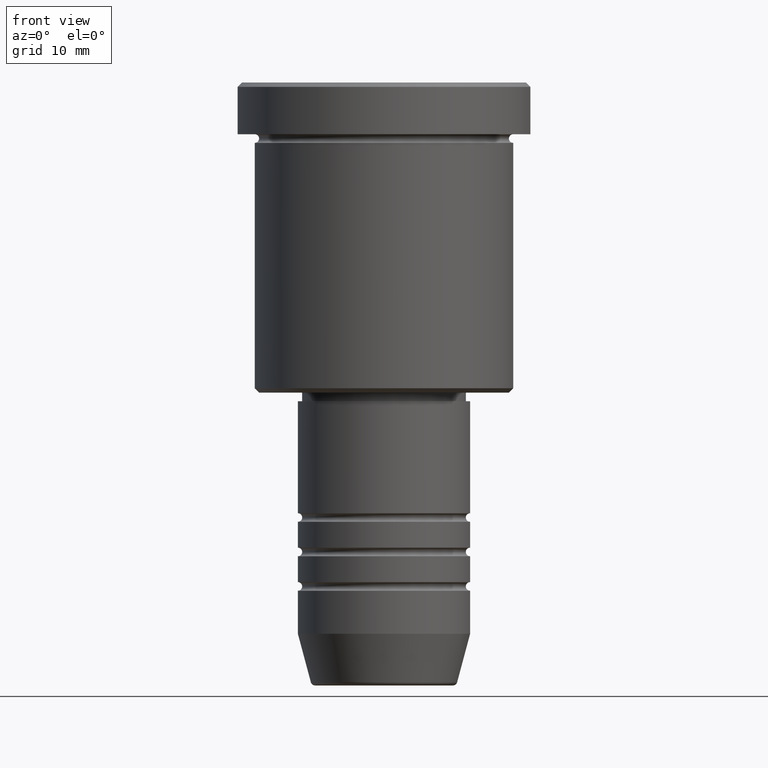
[diagram: clean part render]
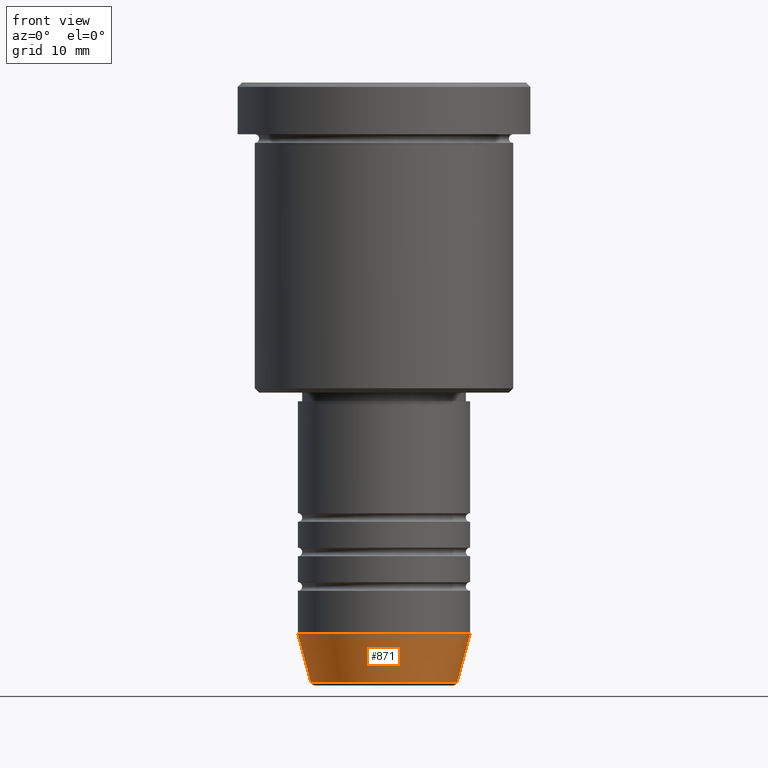
[diagram: same view with one face highlighted and labeled with its STEP entity id]
A machine part, front view. The second image highlights one B-rep face of the part: STEP entity #871.
In plain terms, the highlighted conical surface has half-angle 15 deg.
Its self-contained STEP definition (entity closure, byte-faithful):
#58 = LINE ( 'NONE', #1068, #905 ) ;
#87 = VERTEX_POINT ( 'NONE', #552 ) ;
#105 = DIRECTION ( 'NONE',  ( -0.000000000000000000, -0.000000000000000000, 1.000000000000000000 ) ) ;
#117 = VERTEX_POINT ( 'NONE', #357 ) ;
#182 = EDGE_CURVE ( 'NONE', #675, #753, #574, .T. ) ;
#191 = ORIENTED_EDGE ( 'NONE', *, *, #519, .T. ) ;
#205 = EDGE_LOOP ( 'NONE', ( #1065, #346, #191, #881 ) ) ;
#242 = AXIS2_PLACEMENT_3D ( 'NONE', #300, #105, #939 ) ;
#300 = CARTESIAN_POINT ( 'NONE',  ( 0.000000000000000000, 0.000000000000000000, -69.62940952255127058 ) ) ;
#346 = ORIENTED_EDGE ( 'NONE', *, *, #182, .T. ) ;
#357 = CARTESIAN_POINT ( 'NONE',  ( -10.00000000000000178, 1.224646799147353454E-15, -64.00000000000000000 ) ) ;
#431 = DIRECTION ( 'NONE',  ( 1.000000000000000000, 0.000000000000000000, 0.000000000000000000 ) ) ;
#453 = CONICAL_SURFACE ( 'NONE', #1179, 10.00000000000000178, 0.2617993877991501295 ) ;
#479 = VECTOR ( 'NONE', #932, 1000.000000000000000 ) ;
#519 = EDGE_CURVE ( 'NONE', #753, #87, #1121, .T. ) ;
#552 = CARTESIAN_POINT ( 'NONE',  ( 10.00000000000000178, 0.000000000000000000, -64.00000000000000000 ) ) ;
#574 = CIRCLE ( 'NONE', #242, 8.491604264568312743 ) ;
#649 = CARTESIAN_POINT ( 'NONE',  ( 8.491604264568312743, 0.000000000000000000, -69.62940952255127058 ) ) ;
#663 = EDGE_CURVE ( 'NONE', #675, #117, #58, .T. ) ;
#675 = VERTEX_POINT ( 'NONE', #1059 ) ;
#679 = CARTESIAN_POINT ( 'NONE',  ( 0.000000000000000000, 0.000000000000000000, -64.00000000000000000 ) ) ;
#705 = EDGE_CURVE ( 'NONE', #117, #87, #919, .T. ) ;
#749 = DIRECTION ( 'NONE',  ( 1.000000000000000000, 0.000000000000000000, 0.000000000000000000 ) ) ;
#753 = VERTEX_POINT ( 'NONE', #649 ) ;
#757 = FACE_OUTER_BOUND ( 'NONE', #205, .T. ) ;
#791 = AXIS2_PLACEMENT_3D ( 'NONE', #1169, #799, #431 ) ;
#799 = DIRECTION ( 'NONE',  ( -0.000000000000000000, -0.000000000000000000, 1.000000000000000000 ) ) ;
#807 = DIRECTION ( 'NONE',  ( -0.2588190451025214056, 3.169619151431772953E-17, 0.9659258262890680902 ) ) ;
#858 = DIRECTION ( 'NONE',  ( -0.000000000000000000, -0.000000000000000000, 1.000000000000000000 ) ) ;
#871 = ADVANCED_FACE ( 'NONE', ( #757 ), #453, .T. ) ;
#881 = ORIENTED_EDGE ( 'NONE', *, *, #705, .F. ) ;
#905 = VECTOR ( 'NONE', #807, 1000.000000000000000 ) ;
#919 = CIRCLE ( 'NONE', #791, 10.00000000000000178 ) ;
#932 = DIRECTION ( 'NONE',  ( 0.2588190451025214056, 0.000000000000000000, 0.9659258262890680902 ) ) ;
#939 = DIRECTION ( 'NONE',  ( 1.000000000000000000, 0.000000000000000000, 0.000000000000000000 ) ) ;
#949 = CARTESIAN_POINT ( 'NONE',  ( 10.00000000000000178, 0.000000000000000000, -64.00000000000000000 ) ) ;
#1059 = CARTESIAN_POINT ( 'NONE',  ( -8.491604264568312743, 1.132284198685156781E-15, -69.62940952255127058 ) ) ;
#1065 = ORIENTED_EDGE ( 'NONE', *, *, #663, .F. ) ;
#1068 = CARTESIAN_POINT ( 'NONE',  ( -10.00000000000000178, 1.224646799147353454E-15, -64.00000000000000000 ) ) ;
#1121 = LINE ( 'NONE', #949, #479 ) ;
#1169 = CARTESIAN_POINT ( 'NONE',  ( 0.000000000000000000, 0.000000000000000000, -64.00000000000000000 ) ) ;
#1179 = AXIS2_PLACEMENT_3D ( 'NONE', #679, #858, #749 ) ;